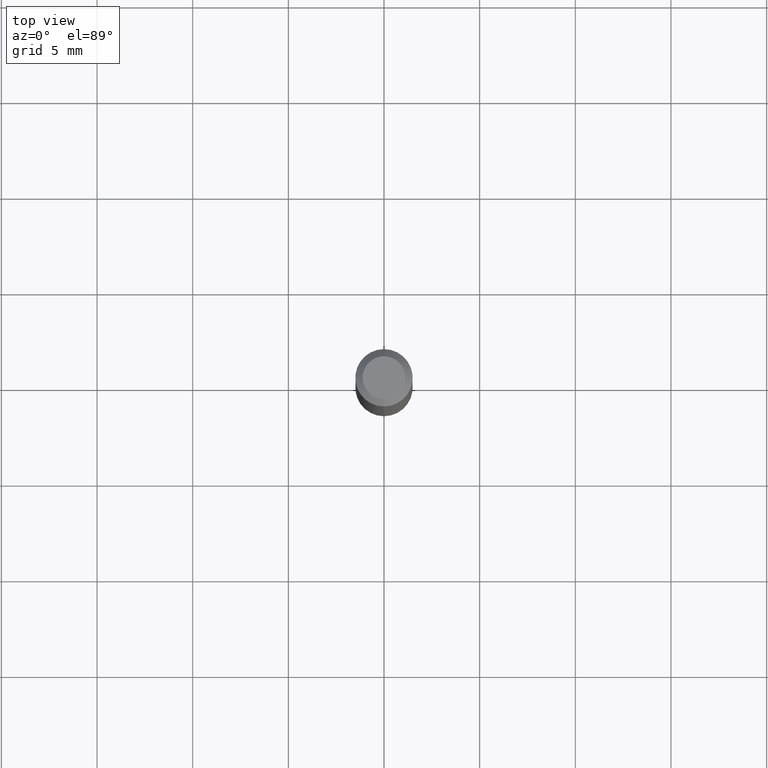
[diagram: clean part render]
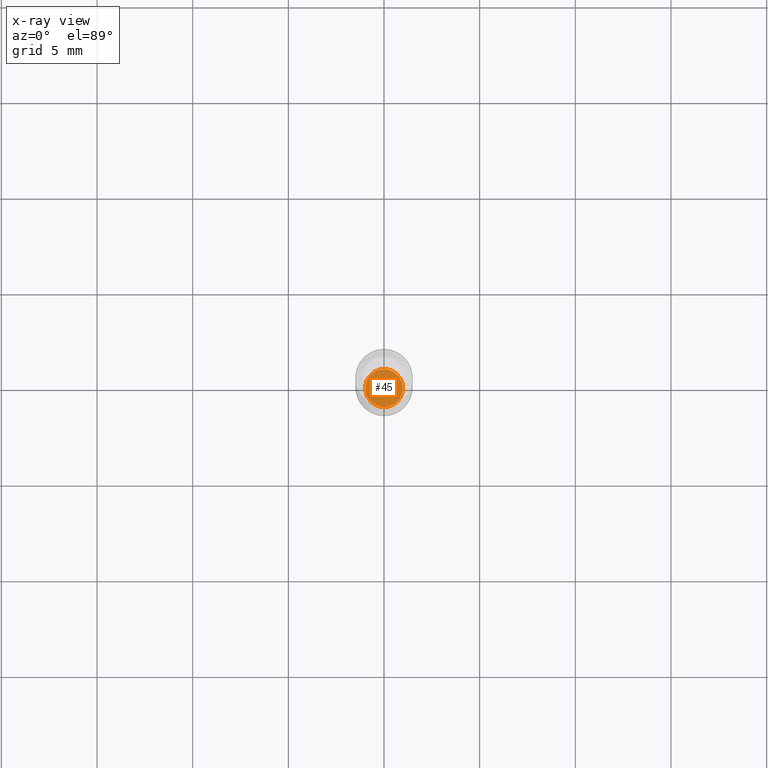
[diagram: x-ray — body ghosted, one internal face saturated and labeled with its STEP entity id]
A machine part, top view, then the same camera in x-ray: the body is ghosted and one INTERNAL B-rep face — a face not visible from any outside direction — is saturated and labeled: STEP entity #45.
In plain terms, the highlighted planar face has unit normal (-0, 0, 1).
Its self-contained STEP definition (entity closure, byte-faithful):
#2 = EDGE_CURVE ( 'NONE', #325, #75, #278, .T. ) ;
#4 = DIRECTION ( 'NONE',  ( -6.982962677686265133E-15, -1.000000000000000000, 0.000000000000000000 ) ) ;
#6 = AXIS2_PLACEMENT_3D ( 'NONE', #359, #203, #4 ) ;
#23 = EDGE_LOOP ( 'NONE', ( #436, #416 ) ) ;
#45 = ADVANCED_FACE ( 'NONE', ( #409 ), #52, .F. ) ;
#52 = PLANE ( 'NONE',  #504 ) ;
#75 = VERTEX_POINT ( 'NONE', #129 ) ;
#78 = DIRECTION ( 'NONE',  ( -2.445991447333329279E-29, 3.490732886972046653E-15, 1.000000000000000000 ) ) ;
#116 = DIRECTION ( 'NONE',  ( -6.982962677686265133E-15, -1.000000000000000000, 0.000000000000000000 ) ) ;
#129 = CARTESIAN_POINT ( 'NONE',  ( 2.778222096822293666E-16, 0.03884999999999564496, -1.248099999999999987 ) ) ;
#203 = DIRECTION ( 'NONE',  ( -2.445991447333329279E-29, 3.490732886972046653E-15, 1.000000000000000000 ) ) ;
#206 = DIRECTION ( 'NONE',  ( -2.445991447333328999E-29, 3.490732886972046653E-15, 1.000000000000000000 ) ) ;
#214 = CARTESIAN_POINT ( 'NONE',  ( 3.052841925416728351E-29, -4.356783716229811953E-15, -1.248099999999999987 ) ) ;
#278 = CIRCLE ( 'NONE', #6, 0.03885000000000000259 ) ;
#324 = CARTESIAN_POINT ( 'NONE',  ( -2.712881000280808977E-16, -0.03885000000000435327, -1.248099999999999987 ) ) ;
#325 = VERTEX_POINT ( 'NONE', #324 ) ;
#359 = CARTESIAN_POINT ( 'NONE',  ( 3.052841925416728351E-29, -4.356783716229811953E-15, -1.248099999999999987 ) ) ;
#382 = EDGE_CURVE ( 'NONE', #75, #325, #396, .T. ) ;
#396 = CIRCLE ( 'NONE', #407, 0.03885000000000000259 ) ;
#406 = DIRECTION ( 'NONE',  ( -6.982962677686265922E-15, -1.000000000000000000, 3.490732886972046653E-15 ) ) ;
#407 = AXIS2_PLACEMENT_3D ( 'NONE', #435, #78, #116 ) ;
#409 = FACE_OUTER_BOUND ( 'NONE', #23, .T. ) ;
#416 = ORIENTED_EDGE ( 'NONE', *, *, #382, .F. ) ;
#435 = CARTESIAN_POINT ( 'NONE',  ( 3.052841925416728351E-29, -4.356783716229811953E-15, -1.248099999999999987 ) ) ;
#436 = ORIENTED_EDGE ( 'NONE', *, *, #2, .F. ) ;
#504 = AXIS2_PLACEMENT_3D ( 'NONE', #214, #206, #406 ) ;